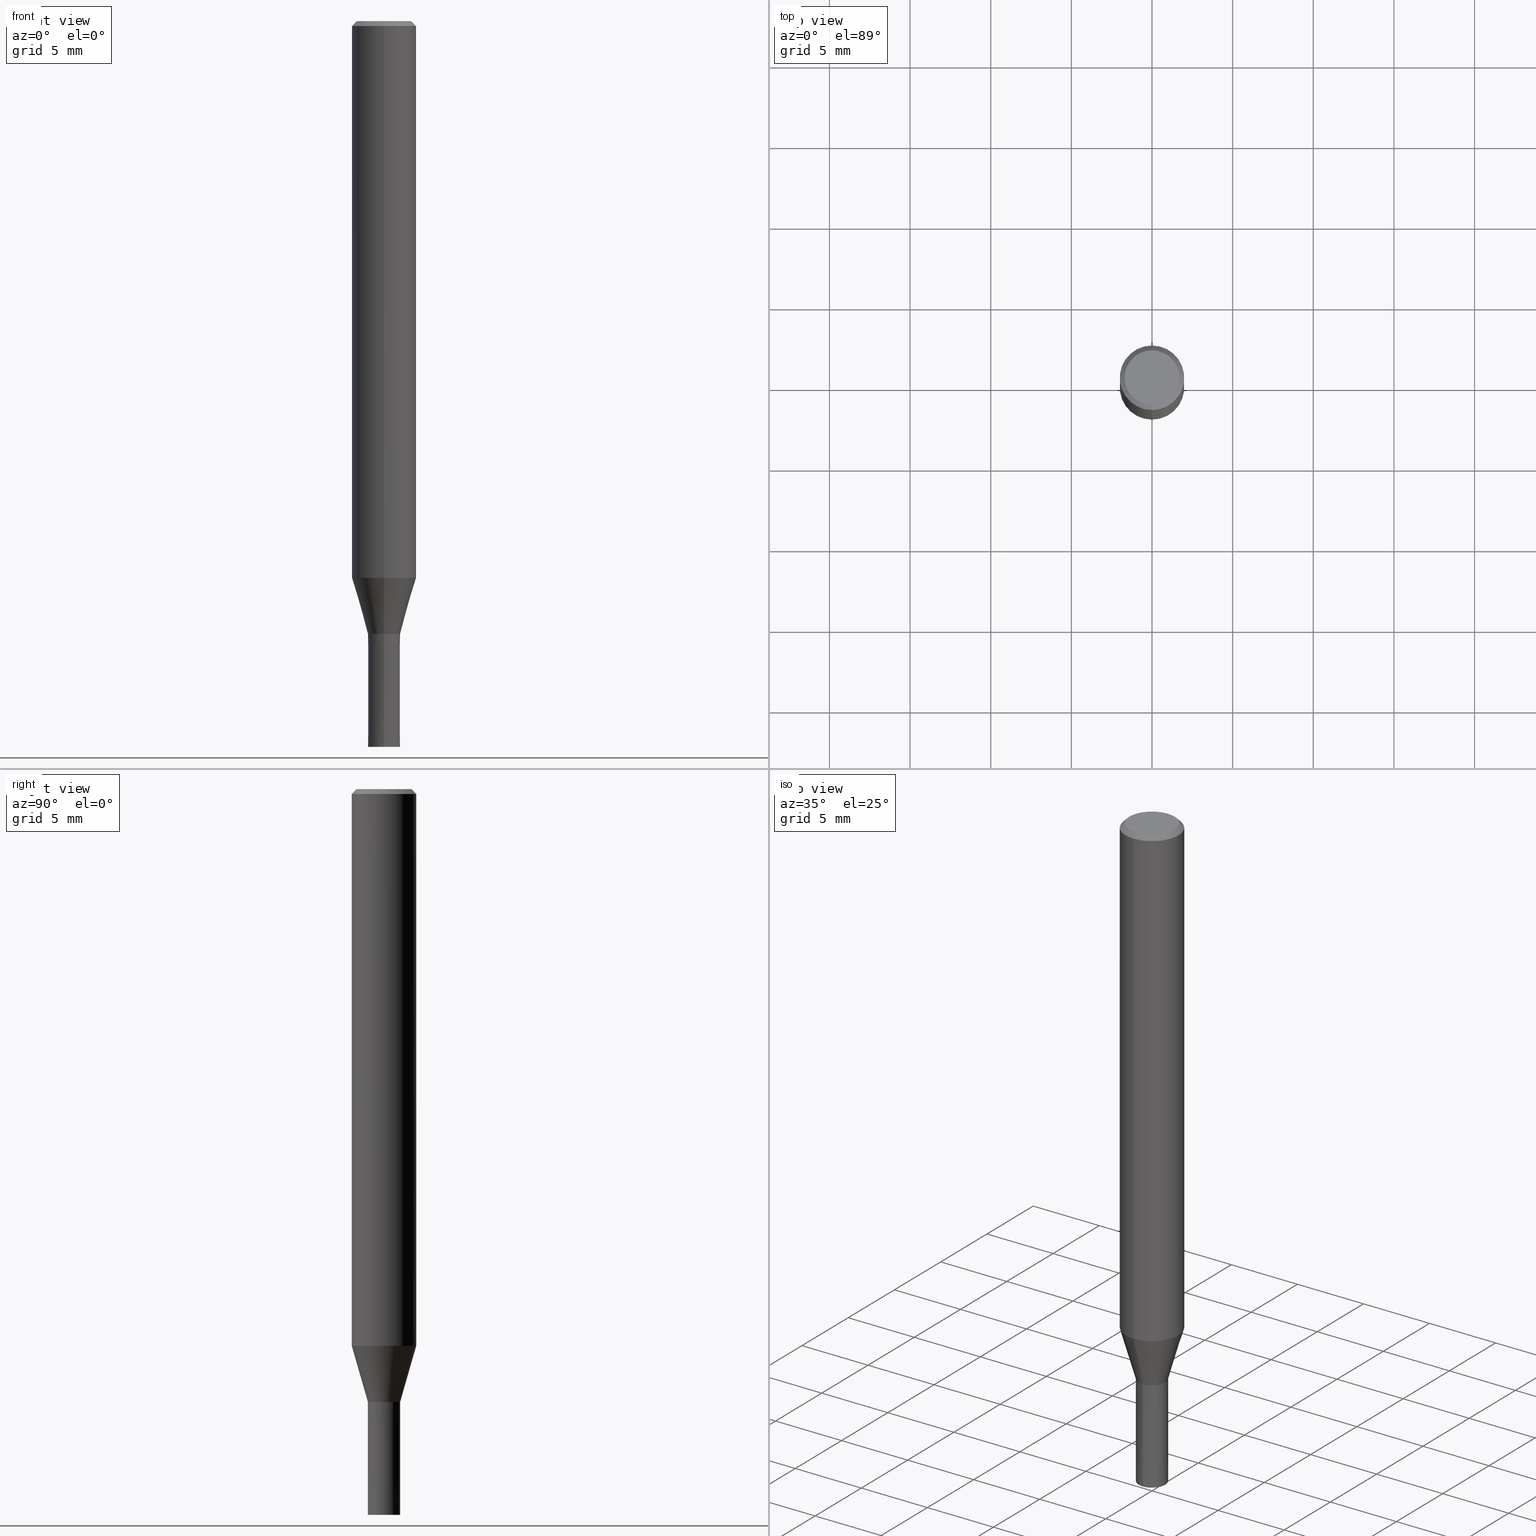
[diagram: canonical four-view strip — front | top / right | iso, engineering-drawing reading convention]
A machine part, canonical four-view strip (front | top / right | iso — engineering-drawing reading convention). The complete STEP part file that produces these views, byte-faithful:
ISO-10303-21;
HEADER;
FILE_DESCRIPTION(('no description'),'unknown implementation level');
FILE_NAME('HMS3020-0700-Huellk.stp','  ',('CIMSOURCE GmbH'),('CADClick - KiM GmbH - www.kimweb.de'),'unknown preprocess','ACIS','unknown authorization');
FILE_SCHEMA(('automotive_design'));
ENDSEC;
DATA;
#1=MECHANICAL_DESIGN_GEOMETRIC_PRESENTATION_REPRESENTATION(' ',(#14,#15,#16,#17,#18,#19,#20,#21,#22,#23,#24,#25,#26,#27,#28,#29,#30,#31,#32,#33,#34,#35,#36,#37,#38,#39,#40,#41,#42,#43,#44,#45,#46,#47,#48,#49,#50,#51,#52,#53,#54,#55,#56,#57,#58,#59,#60,#61,#62,#63,#64,#65,#66,#67,#68,#69,#70,#71,#72,#73,#74,#75,#76,#77,#78,#79,#80,#81,#82,#83,#84,#85,#86,#87,#88,#89),#10);
#2=PRODUCT_DEFINITION_CONTEXT('',#90,'design');
#3=APPLICATION_PROTOCOL_DEFINITION('INTERNATIONAL STANDARD','automotive_design',1994,#90);
#4=PRODUCT_CATEGORY_RELATIONSHIP('NONE','NONE',#91,#92);
#5=SHAPE_DEFINITION_REPRESENTATION(#93,#94);
#6=PRODUCT_DEFINITION_CONTEXT('',#95,'design');
#7=APPLICATION_PROTOCOL_DEFINITION('INTERNATIONAL STANDARD','automotive_design',1994,#95);
#8=PRODUCT_CATEGORY_RELATIONSHIP('NONE','NONE',#96,#97);
#9=SHAPE_DEFINITION_REPRESENTATION(#98,#99);
#10= (GEOMETRIC_REPRESENTATION_CONTEXT(3)GLOBAL_UNCERTAINTY_ASSIGNED_CONTEXT((#102))GLOBAL_UNIT_ASSIGNED_CONTEXT((#104,#105,#106))REPRESENTATION_CONTEXT('NONE','WORKSPACE'));
#14=STYLED_ITEM('',(#108),#109);
#15=STYLED_ITEM('',(#110),#111);
#16=STYLED_ITEM('',(#112),#113);
#17=STYLED_ITEM('',(#114),#115);
#18=STYLED_ITEM('',(#116),#117);
#19=STYLED_ITEM('',(#118),#119);
#20=STYLED_ITEM('',(#120),#121);
#21=STYLED_ITEM('',(#122),#123);
#22=STYLED_ITEM('',(#124),#125);
#23=STYLED_ITEM('',(#126),#127);
#24=STYLED_ITEM('',(#128),#129);
#25=STYLED_ITEM('',(#130),#131);
#26=STYLED_ITEM('',(#132),#133);
#27=STYLED_ITEM('',(#134),#135);
#28=STYLED_ITEM('',(#136),#137);
#29=STYLED_ITEM('',(#138),#139);
#30=STYLED_ITEM('',(#140),#141);
#31=STYLED_ITEM('',(#142),#143);
#32=STYLED_ITEM('',(#144),#145);
#33=STYLED_ITEM('',(#146),#147);
#34=STYLED_ITEM('',(#148),#149);
#35=STYLED_ITEM('',(#150),#151);
#36=STYLED_ITEM('',(#152),#153);
#37=STYLED_ITEM('',(#154),#155);
#38=STYLED_ITEM('',(#156),#157);
#39=STYLED_ITEM('',(#158),#159);
#40=STYLED_ITEM('',(#160),#161);
#41=STYLED_ITEM('',(#162),#163);
#42=STYLED_ITEM('',(#164),#165);
#43=STYLED_ITEM('',(#166),#167);
#44=STYLED_ITEM('',(#168),#169);
#45=STYLED_ITEM('',(#170),#171);
#46=STYLED_ITEM('',(#172),#173);
#47=STYLED_ITEM('',(#174),#175);
#48=STYLED_ITEM('',(#176),#177);
#49=STYLED_ITEM('',(#178),#179);
#50=STYLED_ITEM('',(#180),#181);
#51=STYLED_ITEM('',(#182),#183);
#52=STYLED_ITEM('',(#184),#185);
#53=STYLED_ITEM('',(#186),#187);
#54=STYLED_ITEM('',(#188),#189);
#55=STYLED_ITEM('',(#190),#191);
#56=STYLED_ITEM('',(#192),#193);
#57=STYLED_ITEM('',(#194),#195);
#58=STYLED_ITEM('',(#196),#197);
#59=STYLED_ITEM('',(#198),#199);
#60=STYLED_ITEM('',(#200),#201);
#61=STYLED_ITEM('',(#202),#203);
#62=STYLED_ITEM('',(#204),#205);
#63=STYLED_ITEM('',(#206),#207);
#64=STYLED_ITEM('',(#208),#209);
#65=STYLED_ITEM('',(#210),#211);
#66=STYLED_ITEM('',(#212),#213);
#67=STYLED_ITEM('',(#214),#215);
#68=STYLED_ITEM('',(#216),#217);
#69=STYLED_ITEM('',(#218),#219);
#70=STYLED_ITEM('',(#220),#221);
#71=STYLED_ITEM('',(#222),#223);
#72=STYLED_ITEM('',(#224),#225);
#73=STYLED_ITEM('',(#226),#227);
#74=STYLED_ITEM('',(#228),#229);
#75=STYLED_ITEM('',(#230),#231);
#76=STYLED_ITEM('',(#232),#233);
#77=STYLED_ITEM('',(#234),#235);
#78=STYLED_ITEM('',(#236),#237);
#79=STYLED_ITEM('',(#238),#239);
#80=STYLED_ITEM('',(#240),#241);
#81=STYLED_ITEM('',(#242),#243);
#82=STYLED_ITEM('',(#244),#245);
#83=STYLED_ITEM('',(#246),#247);
#84=STYLED_ITEM('',(#248),#249);
#85=STYLED_ITEM('',(#250),#251);
#86=STYLED_ITEM('',(#252),#253);
#87=STYLED_ITEM('',(#254),#255);
#88=STYLED_ITEM('',(#256),#257);
#89=STYLED_ITEM('',(#258),#259);
#90=APPLICATION_CONTEXT(' ');
#91=PRODUCT_CATEGORY('part','NONE');
#92=PRODUCT_RELATED_PRODUCT_CATEGORY('detail',' ',(#260));
#93=PRODUCT_DEFINITION_SHAPE('NONE','NONE',#261);
#94=ADVANCED_BREP_SHAPE_REPRESENTATION('1',(#223,#262),#10);
#95=APPLICATION_CONTEXT(' ');
#96=PRODUCT_CATEGORY('part','NONE');
#97=PRODUCT_RELATED_PRODUCT_CATEGORY('detail',' ',(#263));
#98=PRODUCT_DEFINITION_SHAPE('NONE','NONE',#264);
#99=ADVANCED_BREP_SHAPE_REPRESENTATION('2',(#187,#265),#10);
#102=UNCERTAINTY_MEASURE_WITH_UNIT(LENGTH_MEASURE(1.0E-006),#104,'','');
#104= (CONVERSION_BASED_UNIT('MILLIMETRE',#268)LENGTH_UNIT()NAMED_UNIT(#271));
#105= (NAMED_UNIT(#273)PLANE_ANGLE_UNIT()SI_UNIT($,.RADIAN.));
#106= (NAMED_UNIT(#273)SOLID_ANGLE_UNIT()SI_UNIT($,.STERADIAN.));
#108=PRESENTATION_STYLE_ASSIGNMENT((#279));
#109=VERTEX_POINT('',#280);
#110=PRESENTATION_STYLE_ASSIGNMENT((#281));
#111=EDGE_CURVE('',#183,#143,#282,.T.);
#112=PRESENTATION_STYLE_ASSIGNMENT((#283));
#113=ADVANCED_FACE('',(#284),#285,.T.);
#114=PRESENTATION_STYLE_ASSIGNMENT((#286));
#115=ADVANCED_FACE('',(#287),#288,.T.);
#116=PRESENTATION_STYLE_ASSIGNMENT((#289));
#117=VERTEX_POINT('',#290);
#118=PRESENTATION_STYLE_ASSIGNMENT((#291));
#119=EDGE_CURVE('',#109,#181,#292,.T.);
#120=PRESENTATION_STYLE_ASSIGNMENT((#293));
#121=VERTEX_POINT('',#294);
#122=PRESENTATION_STYLE_ASSIGNMENT((#295));
#123=ADVANCED_FACE('',(#296),#297,.T.);
#124=PRESENTATION_STYLE_ASSIGNMENT((#298));
#125=ADVANCED_FACE('',(#299,#300),#301,.T.);
#126=PRESENTATION_STYLE_ASSIGNMENT((#302));
#127=EDGE_CURVE('',#237,#249,#303,.T.);
#128=PRESENTATION_STYLE_ASSIGNMENT((#304));
#129=EDGE_CURVE('',#185,#157,#305,.T.);
#130=PRESENTATION_STYLE_ASSIGNMENT((#306));
#131=EDGE_CURVE('',#247,#121,#307,.T.);
#132=PRESENTATION_STYLE_ASSIGNMENT((#308));
#133=VERTEX_POINT('',#309);
#134=PRESENTATION_STYLE_ASSIGNMENT((#310));
#135=ADVANCED_FACE('',(#311),#312,.T.);
#136=PRESENTATION_STYLE_ASSIGNMENT((#313));
#137=EDGE_CURVE('',#143,#183,#314,.T.);
#138=PRESENTATION_STYLE_ASSIGNMENT((#315));
#139=ADVANCED_FACE('',(#316),#317,.T.);
#140=PRESENTATION_STYLE_ASSIGNMENT((#318));
#141=VERTEX_POINT('',#319);
#142=PRESENTATION_STYLE_ASSIGNMENT((#320));
#143=VERTEX_POINT('',#321);
#144=PRESENTATION_STYLE_ASSIGNMENT((#322));
#145=ADVANCED_FACE('',(#323),#324,.T.);
#146=PRESENTATION_STYLE_ASSIGNMENT((#325));
#147=EDGE_CURVE('',#117,#171,#326,.T.);
#148=PRESENTATION_STYLE_ASSIGNMENT((#327));
#149=ADVANCED_FACE('',(#328),#329,.F.);
#150=PRESENTATION_STYLE_ASSIGNMENT((#330));
#151=EDGE_CURVE('',#181,#171,#331,.T.);
#152=PRESENTATION_STYLE_ASSIGNMENT((#332));
#153=EDGE_CURVE('',#191,#161,#333,.T.);
#154=PRESENTATION_STYLE_ASSIGNMENT((#334));
#155=EDGE_CURVE('',#233,#143,#335,.T.);
#156=PRESENTATION_STYLE_ASSIGNMENT((#336));
#157=VERTEX_POINT('',#337);
#158=PRESENTATION_STYLE_ASSIGNMENT((#338));
#159=ADVANCED_FACE('',(#339,#340),#341,.T.);
#160=PRESENTATION_STYLE_ASSIGNMENT((#342));
#161=VERTEX_POINT('',#343);
#162=PRESENTATION_STYLE_ASSIGNMENT((#344));
#163=EDGE_CURVE('',#249,#237,#345,.T.);
#164=PRESENTATION_STYLE_ASSIGNMENT((#346));
#165=ADVANCED_FACE('',(#347),#348,.T.);
#166=PRESENTATION_STYLE_ASSIGNMENT((#349));
#167=EDGE_CURVE('',#249,#191,#350,.T.);
#168=PRESENTATION_STYLE_ASSIGNMENT((#351));
#169=ADVANCED_FACE('',(#352,#353),#354,.T.);
#170=PRESENTATION_STYLE_ASSIGNMENT((#355));
#171=VERTEX_POINT('',#356);
#172=PRESENTATION_STYLE_ASSIGNMENT((#357));
#173=EDGE_CURVE('',#233,#243,#358,.T.);
#174=PRESENTATION_STYLE_ASSIGNMENT((#359));
#175=VERTEX_POINT('',#360);
#176=PRESENTATION_STYLE_ASSIGNMENT((#361));
#177=EDGE_CURVE('',#229,#117,#362,.T.);
#178=PRESENTATION_STYLE_ASSIGNMENT((#363));
#179=ADVANCED_FACE('',(#364),#365,.T.);
#180=PRESENTATION_STYLE_ASSIGNMENT((#366));
#181=VERTEX_POINT('',#367);
#182=PRESENTATION_STYLE_ASSIGNMENT((#368));
#183=VERTEX_POINT('',#369);
#184=PRESENTATION_STYLE_ASSIGNMENT((#370));
#185=VERTEX_POINT('',#371);
#186=PRESENTATION_STYLE_ASSIGNMENT((#372));
#187=MANIFOLD_SOLID_BREP('2',#373);
#188=PRESENTATION_STYLE_ASSIGNMENT((#374));
#189=EDGE_CURVE('',#211,#157,#375,.T.);
#190=PRESENTATION_STYLE_ASSIGNMENT((#376));
#191=VERTEX_POINT('',#377);
#192=PRESENTATION_STYLE_ASSIGNMENT((#378));
#193=EDGE_CURVE('',#175,#121,#379,.T.);
#194=PRESENTATION_STYLE_ASSIGNMENT((#380));
#195=EDGE_CURVE('',#175,#255,#381,.T.);
#196=PRESENTATION_STYLE_ASSIGNMENT((#382));
#197=EDGE_CURVE('',#255,#175,#383,.T.);
#198=PRESENTATION_STYLE_ASSIGNMENT((#384));
#199=EDGE_CURVE('',#157,#185,#385,.T.);
#200=PRESENTATION_STYLE_ASSIGNMENT((#386));
#201=ADVANCED_FACE('',(#387),#388,.T.);
#202=PRESENTATION_STYLE_ASSIGNMENT((#389));
#203=EDGE_CURVE('',#171,#133,#390,.T.);
#204=PRESENTATION_STYLE_ASSIGNMENT((#391));
#205=EDGE_CURVE('',#109,#133,#392,.T.);
#206=PRESENTATION_STYLE_ASSIGNMENT((#393));
#207=EDGE_CURVE('',#161,#191,#394,.T.);
#208=PRESENTATION_STYLE_ASSIGNMENT((#395));
#209=ADVANCED_FACE('',(#396),#397,.F.);
#210=PRESENTATION_STYLE_ASSIGNMENT((#398));
#211=VERTEX_POINT('',#399);
#212=PRESENTATION_STYLE_ASSIGNMENT((#400));
#213=EDGE_CURVE('',#183,#243,#401,.T.);
#214=PRESENTATION_STYLE_ASSIGNMENT((#402));
#215=EDGE_CURVE('',#247,#255,#403,.T.);
#216=PRESENTATION_STYLE_ASSIGNMENT((#404));
#217=EDGE_CURVE('',#121,#247,#405,.T.);
#218=PRESENTATION_STYLE_ASSIGNMENT((#406));
#219=ADVANCED_FACE('',(#407),#408,.T.);
#220=PRESENTATION_STYLE_ASSIGNMENT((#409));
#221=EDGE_CURVE('',#171,#181,#410,.T.);
#222=PRESENTATION_STYLE_ASSIGNMENT((#411));
#223=MANIFOLD_SOLID_BREP('1',#412);
#224=PRESENTATION_STYLE_ASSIGNMENT((#413));
#225=ADVANCED_FACE('',(#414,#415),#416,.T.);
#226=PRESENTATION_STYLE_ASSIGNMENT((#417));
#227=EDGE_CURVE('',#133,#109,#418,.T.);
#228=PRESENTATION_STYLE_ASSIGNMENT((#419));
#229=VERTEX_POINT('',#420);
#230=PRESENTATION_STYLE_ASSIGNMENT((#421));
#231=EDGE_CURVE('',#161,#237,#422,.T.);
#232=PRESENTATION_STYLE_ASSIGNMENT((#423));
#233=VERTEX_POINT('',#424);
#234=PRESENTATION_STYLE_ASSIGNMENT((#425));
#235=EDGE_CURVE('',#211,#141,#426,.T.);
#236=PRESENTATION_STYLE_ASSIGNMENT((#427));
#237=VERTEX_POINT('',#428);
#238=PRESENTATION_STYLE_ASSIGNMENT((#429));
#239=EDGE_CURVE('',#181,#229,#430,.T.);
#240=PRESENTATION_STYLE_ASSIGNMENT((#431));
#241=ADVANCED_FACE('',(#432),#433,.T.);
#242=PRESENTATION_STYLE_ASSIGNMENT((#434));
#243=VERTEX_POINT('',#435);
#244=PRESENTATION_STYLE_ASSIGNMENT((#436));
#245=EDGE_CURVE('',#141,#211,#437,.T.);
#246=PRESENTATION_STYLE_ASSIGNMENT((#438));
#247=VERTEX_POINT('',#439);
#248=PRESENTATION_STYLE_ASSIGNMENT((#440));
#249=VERTEX_POINT('',#441);
#250=PRESENTATION_STYLE_ASSIGNMENT((#442));
#251=EDGE_CURVE('',#185,#141,#443,.T.);
#252=PRESENTATION_STYLE_ASSIGNMENT((#444));
#253=ADVANCED_FACE('',(#445),#446,.T.);
#254=PRESENTATION_STYLE_ASSIGNMENT((#447));
#255=VERTEX_POINT('',#448);
#256=PRESENTATION_STYLE_ASSIGNMENT((#449));
#257=EDGE_CURVE('',#117,#229,#450,.T.);
#258=PRESENTATION_STYLE_ASSIGNMENT((#451));
#259=EDGE_CURVE('',#243,#233,#452,.T.);
#260=PRODUCT('1','1','PART-1-DESC',(#453));
#261=PRODUCT_DEFINITION('NONE','NONE',#454,#2);
#262=AXIS2_PLACEMENT_3D('',#455,#456,#457);
#263=PRODUCT('2','2','PART-2-DESC',(#458));
#264=PRODUCT_DEFINITION('NONE','NONE',#459,#6);
#265=AXIS2_PLACEMENT_3D('',#460,#461,#462);
#268=LENGTH_MEASURE_WITH_UNIT(LENGTH_MEASURE(1.0),#463);
#271=DIMENSIONAL_EXPONENTS(1.0,0.0,0.0,0.0,0.0,0.0,0.0);
#273=DIMENSIONAL_EXPONENTS(0.0,0.0,0.0,0.0,0.0,0.0,0.0);
#279=POINT_STYLE(' ',#464,POSITIVE_LENGTH_MEASURE(1.0E-006),#465);
#280=CARTESIAN_POINT('',(2.44921270764475E-016,-2.0,-34.513));
#281=CURVE_STYLE('',#466,POSITIVE_LENGTH_MEASURE(1.0E-006),#467);
#282=CIRCLE('',#468,0.45);
#283=SURFACE_STYLE_USAGE(.BOTH.,#469);
#284=FACE_OUTER_BOUND('',#470,.T.);
#285=CONICAL_SURFACE('',#471,0.99995,1.42857142847409E-005);
#286=SURFACE_STYLE_USAGE(.BOTH.,#472);
#287=FACE_OUTER_BOUND('',#473,.T.);
#288=CONICAL_SURFACE('',#474,1.49995,0.279284171542493);
#289=POINT_STYLE(' ',#475,POSITIVE_LENGTH_MEASURE(1.0E-006),#476);
#290=CARTESIAN_POINT('',(0.0,1.7,0.0));
#291=CURVE_STYLE('',#477,POSITIVE_LENGTH_MEASURE(1.0E-006),#478);
#292=LINE('',#479,#480);
#293=POINT_STYLE(' ',#481,POSITIVE_LENGTH_MEASURE(1.0E-006),#482);
#294=CARTESIAN_POINT('',(0.0,1.0,-45.0));
#295=SURFACE_STYLE_USAGE(.BOTH.,#483);
#296=FACE_OUTER_BOUND('',#484,.T.);
#297=CYLINDRICAL_SURFACE('',#485,2.0);
#298=SURFACE_STYLE_USAGE(.BOTH.,#486);
#299=FACE_OUTER_BOUND('',#487,.T.);
#300=FACE_BOUND('',#488,.T.);
#301=PLANE('',#489);
#302=CURVE_STYLE('',#490,POSITIVE_LENGTH_MEASURE(1.0E-006),#491);
#303=CIRCLE('',#492,0.45);
#304=CURVE_STYLE('',#493,POSITIVE_LENGTH_MEASURE(1.0E-006),#494);
#305=CIRCLE('',#495,0.99995);
#306=CURVE_STYLE('',#496,POSITIVE_LENGTH_MEASURE(1.0E-006),#497);
#307=CIRCLE('',#498,1.0);
#308=POINT_STYLE(' ',#499,POSITIVE_LENGTH_MEASURE(1.0E-006),#500);
#309=CARTESIAN_POINT('',(0.0,2.0,-34.513));
#310=SURFACE_STYLE_USAGE(.BOTH.,#501);
#311=FACE_OUTER_BOUND('',#502,.T.);
#312=CONICAL_SURFACE('',#503,0.99995,1.42857142847409E-005);
#313=CURVE_STYLE('',#504,POSITIVE_LENGTH_MEASURE(1.0E-006),#505);
#314=CIRCLE('',#506,0.45);
#315=SURFACE_STYLE_USAGE(.BOTH.,#507);
#316=FACE_OUTER_BOUND('',#508,.T.);
#317=CONICAL_SURFACE('',#509,1.49995,0.279284171542493);
#318=POINT_STYLE(' ',#510,POSITIVE_LENGTH_MEASURE(1.0E-006),#511);
#319=CARTESIAN_POINT('',(2.44915147732706E-016,-1.99995,-34.513));
#320=POINT_STYLE(' ',#512,POSITIVE_LENGTH_MEASURE(1.0E-006),#513);
#321=CARTESIAN_POINT('',(5.5107285922007E-017,-0.45,-38.0));
#322=SURFACE_STYLE_USAGE(.BOTH.,#514);
#323=FACE_OUTER_BOUND('',#515,.T.);
#324=CONICAL_SURFACE('',#516,1.85,0.785398163397453);
#325=CURVE_STYLE('',#517,POSITIVE_LENGTH_MEASURE(1.0E-006),#518);
#326=LINE('',#519,#520);
#327=SURFACE_STYLE_USAGE(.BOTH.,#521);
#328=FACE_OUTER_BOUND('',#522,.T.);
#329=CYLINDRICAL_SURFACE('',#523,0.45);
#330=CURVE_STYLE('',#524,POSITIVE_LENGTH_MEASURE(1.0E-006),#525);
#331=CIRCLE('',#526,2.0);
#332=CURVE_STYLE('',#527,POSITIVE_LENGTH_MEASURE(1.0E-006),#528);
#333=CIRCLE('',#529,0.45);
#334=CURVE_STYLE('',#530,POSITIVE_LENGTH_MEASURE(1.0E-006),#531);
#335=LINE('',#532,#533);
#336=POINT_STYLE(' ',#534,POSITIVE_LENGTH_MEASURE(1.0E-006),#535);
#337=CARTESIAN_POINT('',(0.0,0.99995,-38.0));
#338=SURFACE_STYLE_USAGE(.BOTH.,#536);
#339=FACE_OUTER_BOUND('',#537,.T.);
#340=FACE_BOUND('',#538,.T.);
#341=PLANE('',#539);
#342=POINT_STYLE(' ',#540,POSITIVE_LENGTH_MEASURE(1.0E-006),#541);
#343=CARTESIAN_POINT('',(0.0,0.45,-38.0));
#344=CURVE_STYLE('',#542,POSITIVE_LENGTH_MEASURE(1.0E-006),#543);
#345=CIRCLE('',#544,0.45);
#346=SURFACE_STYLE_USAGE(.BOTH.,#545);
#347=FACE_OUTER_BOUND('',#546,.T.);
#348=PLANE('',#547);
#349=CURVE_STYLE('',#548,POSITIVE_LENGTH_MEASURE(1.0E-006),#549);
#350=LINE('',#550,#551);
#351=SURFACE_STYLE_USAGE(.BOTH.,#552);
#352=FACE_BOUND('',#553,.T.);
#353=FACE_OUTER_BOUND('',#554,.T.);
#354=PLANE('',#555);
#355=POINT_STYLE(' ',#556,POSITIVE_LENGTH_MEASURE(1.0E-006),#557);
#356=CARTESIAN_POINT('',(0.0,2.0,-0.299999999999997));
#357=CURVE_STYLE('',#558,POSITIVE_LENGTH_MEASURE(1.0E-006),#559);
#358=CIRCLE('',#560,0.45);
#359=POINT_STYLE(' ',#561,POSITIVE_LENGTH_MEASURE(1.0E-006),#562);
#360=CARTESIAN_POINT('',(0.0,0.9999,-38.0));
#361=CURVE_STYLE('',#563,POSITIVE_LENGTH_MEASURE(1.0E-006),#564);
#362=CIRCLE('',#565,1.7);
#363=SURFACE_STYLE_USAGE(.BOTH.,#566);
#364=FACE_OUTER_BOUND('',#567,.T.);
#365=CONICAL_SURFACE('',#568,1.85,0.785398163397453);
#366=POINT_STYLE(' ',#569,POSITIVE_LENGTH_MEASURE(1.0E-006),#570);
#367=CARTESIAN_POINT('',(2.44921270764475E-016,-2.0,-0.299999999999997));
#368=POINT_STYLE(' ',#571,POSITIVE_LENGTH_MEASURE(1.0E-006),#572);
#369=CARTESIAN_POINT('',(0.0,0.45,-38.0));
#370=POINT_STYLE(' ',#573,POSITIVE_LENGTH_MEASURE(1.0E-006),#574);
#371=CARTESIAN_POINT('',(1.22454512350469E-016,-0.99995,-38.0));
#372=SURFACE_STYLE_USAGE(.BOTH.,#575);
#373=CLOSED_SHELL('',(#209,#113,#159,#135,#125,#149));
#374=CURVE_STYLE('',#576,POSITIVE_LENGTH_MEASURE(1.0E-006),#577);
#375=LINE('',#578,#579);
#376=POINT_STYLE(' ',#580,POSITIVE_LENGTH_MEASURE(1.0E-006),#581);
#377=CARTESIAN_POINT('',(5.5107285922007E-017,-0.45,-38.0));
#378=CURVE_STYLE('',#582,POSITIVE_LENGTH_MEASURE(1.0E-006),#583);
#379=LINE('',#584,#585);
#380=CURVE_STYLE('',#586,POSITIVE_LENGTH_MEASURE(1.0E-006),#587);
#381=CIRCLE('',#588,0.9999);
#382=CURVE_STYLE('',#589,POSITIVE_LENGTH_MEASURE(1.0E-006),#590);
#383=CIRCLE('',#591,0.9999);
#384=CURVE_STYLE('',#592,POSITIVE_LENGTH_MEASURE(1.0E-006),#593);
#385=CIRCLE('',#594,0.99995);
#386=SURFACE_STYLE_USAGE(.BOTH.,#595);
#387=FACE_OUTER_BOUND('',#596,.T.);
#388=CYLINDRICAL_SURFACE('',#597,0.45);
#389=CURVE_STYLE('',#598,POSITIVE_LENGTH_MEASURE(1.0E-006),#599);
#390=LINE('',#600,#601);
#391=CURVE_STYLE('',#602,POSITIVE_LENGTH_MEASURE(1.0E-006),#603);
#392=CIRCLE('',#604,2.0);
#393=CURVE_STYLE('',#605,POSITIVE_LENGTH_MEASURE(1.0E-006),#606);
#394=CIRCLE('',#607,0.45);
#395=SURFACE_STYLE_USAGE(.BOTH.,#608);
#396=FACE_OUTER_BOUND('',#609,.T.);
#397=CYLINDRICAL_SURFACE('',#610,0.45);
#398=POINT_STYLE(' ',#611,POSITIVE_LENGTH_MEASURE(1.0E-006),#612);
#399=CARTESIAN_POINT('',(0.0,1.99995,-34.513));
#400=CURVE_STYLE('',#613,POSITIVE_LENGTH_MEASURE(1.0E-006),#614);
#401=LINE('',#615,#616);
#402=CURVE_STYLE('',#617,POSITIVE_LENGTH_MEASURE(1.0E-006),#618);
#403=LINE('',#619,#620);
#404=CURVE_STYLE('',#621,POSITIVE_LENGTH_MEASURE(1.0E-006),#622);
#405=CIRCLE('',#623,1.0);
#406=SURFACE_STYLE_USAGE(.BOTH.,#624);
#407=FACE_OUTER_BOUND('',#625,.T.);
#408=CYLINDRICAL_SURFACE('',#626,2.0);
#409=CURVE_STYLE('',#627,POSITIVE_LENGTH_MEASURE(1.0E-006),#628);
#410=CIRCLE('',#629,2.0);
#411=SURFACE_STYLE_USAGE(.BOTH.,#630);
#412=CLOSED_SHELL('',(#201,#115,#219,#145,#225,#241,#179,#123,#139,#169,#253,#165));
#413=SURFACE_STYLE_USAGE(.BOTH.,#631);
#414=FACE_OUTER_BOUND('',#632,.T.);
#415=FACE_BOUND('',#633,.T.);
#416=PLANE('',#634);
#417=CURVE_STYLE('',#635,POSITIVE_LENGTH_MEASURE(1.0E-006),#636);
#418=CIRCLE('',#637,2.0);
#419=POINT_STYLE(' ',#638,POSITIVE_LENGTH_MEASURE(1.0E-006),#639);
#420=CARTESIAN_POINT('',(2.08183080149804E-016,-1.7,0.0));
#421=CURVE_STYLE('',#640,POSITIVE_LENGTH_MEASURE(1.0E-006),#641);
#422=LINE('',#642,#643);
#423=POINT_STYLE(' ',#644,POSITIVE_LENGTH_MEASURE(1.0E-006),#645);
#424=CARTESIAN_POINT('',(5.5107285922007E-017,-0.45,-44.9));
#425=CURVE_STYLE('',#646,POSITIVE_LENGTH_MEASURE(1.0E-006),#647);
#426=CIRCLE('',#648,1.99995);
#427=POINT_STYLE(' ',#649,POSITIVE_LENGTH_MEASURE(1.0E-006),#650);
#428=CARTESIAN_POINT('',(0.0,0.45,-45.0));
#429=CURVE_STYLE('',#651,POSITIVE_LENGTH_MEASURE(1.0E-006),#652);
#430=LINE('',#653,#654);
#431=SURFACE_STYLE_USAGE(.BOTH.,#655);
#432=FACE_OUTER_BOUND('',#656,.T.);
#433=PLANE('',#657);
#434=POINT_STYLE(' ',#658,POSITIVE_LENGTH_MEASURE(1.0E-006),#659);
#435=CARTESIAN_POINT('',(0.0,0.45,-44.9));
#436=CURVE_STYLE('',#660,POSITIVE_LENGTH_MEASURE(1.0E-006),#661);
#437=CIRCLE('',#662,1.99995);
#438=POINT_STYLE(' ',#663,POSITIVE_LENGTH_MEASURE(1.0E-006),#664);
#439=CARTESIAN_POINT('',(1.22460635382238E-016,-1.0,-45.0));
#440=POINT_STYLE(' ',#665,POSITIVE_LENGTH_MEASURE(1.0E-006),#666);
#441=CARTESIAN_POINT('',(5.5107285922007E-017,-0.45,-45.0));
#442=CURVE_STYLE('',#667,POSITIVE_LENGTH_MEASURE(1.0E-006),#668);
#443=LINE('',#669,#670);
#444=SURFACE_STYLE_USAGE(.BOTH.,#671);
#445=FACE_OUTER_BOUND('',#672,.T.);
#446=CYLINDRICAL_SURFACE('',#673,0.45);
#447=POINT_STYLE(' ',#674,POSITIVE_LENGTH_MEASURE(1.0E-006),#675);
#448=CARTESIAN_POINT('',(1.224483893187E-016,-0.9999,-38.0));
#449=CURVE_STYLE('',#676,POSITIVE_LENGTH_MEASURE(1.0E-006),#677);
#450=CIRCLE('',#678,1.7);
#451=CURVE_STYLE('',#679,POSITIVE_LENGTH_MEASURE(1.0E-006),#680);
#452=CIRCLE('',#681,0.45);
#453=PRODUCT_CONTEXT('',#90,'mechanical');
#454=PRODUCT_DEFINITION_FORMATION_WITH_SPECIFIED_SOURCE(' ','NONE',#260,.NOT_KNOWN.);
#455=CARTESIAN_POINT('',(0.0,0.0,0.0));
#456=DIRECTION('',(0.0,0.0,1.0));
#457=DIRECTION('',(1.0,0.0,0.0));
#458=PRODUCT_CONTEXT('',#95,'mechanical');
#459=PRODUCT_DEFINITION_FORMATION_WITH_SPECIFIED_SOURCE(' ','NONE',#263,.NOT_KNOWN.);
#460=CARTESIAN_POINT('',(0.0,0.0,0.0));
#461=DIRECTION('',(0.0,0.0,1.0));
#462=DIRECTION('',(1.0,0.0,0.0));
#463= (NAMED_UNIT(#271)LENGTH_UNIT()SI_UNIT(.MILLI.,.METRE.));
#464=PRE_DEFINED_MARKER('');
#465=COLOUR_RGB('',0.498039215803146,0.498039215803146,0.498039215803146);
#466=DRAUGHTING_PRE_DEFINED_CURVE_FONT('continuous');
#467=COLOUR_RGB('',0.498039215803146,0.498039215803146,0.498039215803146);
#468=AXIS2_PLACEMENT_3D('',#683,#684,#685);
#469=SURFACE_SIDE_STYLE('',(#686));
#470=EDGE_LOOP('',(#687,#688,#689,#690));
#471=AXIS2_PLACEMENT_3D('',#691,#692,#693);
#472=SURFACE_SIDE_STYLE('',(#694));
#473=EDGE_LOOP('',(#695,#696,#697,#698));
#474=AXIS2_PLACEMENT_3D('',#699,#700,#701);
#475=PRE_DEFINED_MARKER('');
#476=COLOUR_RGB('',0.498039215803146,0.498039215803146,0.498039215803146);
#477=DRAUGHTING_PRE_DEFINED_CURVE_FONT('continuous');
#478=COLOUR_RGB('',0.498039215803146,0.498039215803146,0.498039215803146);
#479=CARTESIAN_POINT('',(2.44921270764475E-016,-2.0,-17.4065));
#480=VECTOR('',#702,1.0);
#481=PRE_DEFINED_MARKER('');
#482=COLOUR_RGB('',0.800000011920929,0.800000011920929,0.800000011920929);
#483=SURFACE_SIDE_STYLE('',(#703));
#484=EDGE_LOOP('',(#704,#705,#706,#707));
#485=AXIS2_PLACEMENT_3D('',#708,#709,#710);
#486=SURFACE_SIDE_STYLE('',(#711));
#487=EDGE_LOOP('',(#712,#713));
#488=EDGE_LOOP('',(#714,#715));
#489=AXIS2_PLACEMENT_3D('',#716,#717,#718);
#490=DRAUGHTING_PRE_DEFINED_CURVE_FONT('continuous');
#491=COLOUR_RGB('',0.800000011920929,0.800000011920929,0.800000011920929);
#492=AXIS2_PLACEMENT_3D('',#719,#720,#721);
#493=DRAUGHTING_PRE_DEFINED_CURVE_FONT('continuous');
#494=COLOUR_RGB('',0.498039215803146,0.498039215803146,0.498039215803146);
#495=AXIS2_PLACEMENT_3D('',#722,#723,#724);
#496=DRAUGHTING_PRE_DEFINED_CURVE_FONT('continuous');
#497=COLOUR_RGB('',0.800000011920929,0.800000011920929,0.800000011920929);
#498=AXIS2_PLACEMENT_3D('',#725,#726,#727);
#499=PRE_DEFINED_MARKER('');
#500=COLOUR_RGB('',0.498039215803146,0.498039215803146,0.498039215803146);
#501=SURFACE_SIDE_STYLE('',(#728));
#502=EDGE_LOOP('',(#729,#730,#731,#732));
#503=AXIS2_PLACEMENT_3D('',#733,#734,#735);
#504=DRAUGHTING_PRE_DEFINED_CURVE_FONT('continuous');
#505=COLOUR_RGB('',0.498039215803146,0.498039215803146,0.498039215803146);
#506=AXIS2_PLACEMENT_3D('',#736,#737,#738);
#507=SURFACE_SIDE_STYLE('',(#739));
#508=EDGE_LOOP('',(#740,#741,#742,#743));
#509=AXIS2_PLACEMENT_3D('',#744,#745,#746);
#510=PRE_DEFINED_MARKER('');
#511=COLOUR_RGB('',0.498039215803146,0.498039215803146,0.498039215803146);
#512=PRE_DEFINED_MARKER('');
#513=COLOUR_RGB('',0.498039215803146,0.498039215803146,0.498039215803146);
#514=SURFACE_SIDE_STYLE('',(#747));
#515=EDGE_LOOP('',(#748,#749,#750,#751));
#516=AXIS2_PLACEMENT_3D('',#752,#753,#754);
#517=DRAUGHTING_PRE_DEFINED_CURVE_FONT('continuous');
#518=COLOUR_RGB('',0.498039215803146,0.498039215803146,0.498039215803146);
#519=CARTESIAN_POINT('',(-2.2655217545714E-016,1.85,-0.149999999999999));
#520=VECTOR('',#755,1.0);
#521=SURFACE_SIDE_STYLE('',(#756));
#522=EDGE_LOOP('',(#757,#758,#759,#760));
#523=AXIS2_PLACEMENT_3D('',#761,#762,#763);
#524=DRAUGHTING_PRE_DEFINED_CURVE_FONT('continuous');
#525=COLOUR_RGB('',0.498039215803146,0.498039215803146,0.498039215803146);
#526=AXIS2_PLACEMENT_3D('',#764,#765,#766);
#527=DRAUGHTING_PRE_DEFINED_CURVE_FONT('continuous');
#528=COLOUR_RGB('',0.800000011920929,0.800000011920929,0.800000011920929);
#529=AXIS2_PLACEMENT_3D('',#767,#768,#769);
#530=DRAUGHTING_PRE_DEFINED_CURVE_FONT('continuous');
#531=COLOUR_RGB('',0.498039215803146,0.498039215803146,0.498039215803146);
#532=CARTESIAN_POINT('',(5.5107285922007E-017,-0.45,-41.45));
#533=VECTOR('',#770,1.0);
#534=PRE_DEFINED_MARKER('');
#535=COLOUR_RGB('',0.498039215803146,0.498039215803146,0.498039215803146);
#536=SURFACE_SIDE_STYLE('',(#771));
#537=EDGE_LOOP('',(#772,#773));
#538=EDGE_LOOP('',(#774,#775));
#539=AXIS2_PLACEMENT_3D('',#776,#777,#778);
#540=PRE_DEFINED_MARKER('');
#541=COLOUR_RGB('',0.800000011920929,0.800000011920929,0.800000011920929);
#542=DRAUGHTING_PRE_DEFINED_CURVE_FONT('continuous');
#543=COLOUR_RGB('',0.800000011920929,0.800000011920929,0.800000011920929);
#544=AXIS2_PLACEMENT_3D('',#779,#780,#781);
#545=SURFACE_SIDE_STYLE('',(#782));
#546=EDGE_LOOP('',(#783,#784));
#547=AXIS2_PLACEMENT_3D('',#785,#786,#787);
#548=DRAUGHTING_PRE_DEFINED_CURVE_FONT('continuous');
#549=COLOUR_RGB('',0.800000011920929,0.800000011920929,0.800000011920929);
#550=CARTESIAN_POINT('',(5.5107285922007E-017,-0.45,-41.5));
#551=VECTOR('',#788,1.0);
#552=SURFACE_SIDE_STYLE('',(#789));
#553=EDGE_LOOP('',(#790,#791));
#554=EDGE_LOOP('',(#792,#793));
#555=AXIS2_PLACEMENT_3D('',#794,#795,#796);
#556=PRE_DEFINED_MARKER('');
#557=COLOUR_RGB('',0.498039215803146,0.498039215803146,0.498039215803146);
#558=DRAUGHTING_PRE_DEFINED_CURVE_FONT('continuous');
#559=COLOUR_RGB('',0.498039215803146,0.498039215803146,0.498039215803146);
#560=AXIS2_PLACEMENT_3D('',#797,#798,#799);
#561=PRE_DEFINED_MARKER('');
#562=COLOUR_RGB('',0.800000011920929,0.800000011920929,0.800000011920929);
#563=DRAUGHTING_PRE_DEFINED_CURVE_FONT('continuous');
#564=COLOUR_RGB('',0.498039215803146,0.498039215803146,0.498039215803146);
#565=AXIS2_PLACEMENT_3D('',#800,#801,#802);
#566=SURFACE_SIDE_STYLE('',(#803));
#567=EDGE_LOOP('',(#804,#805,#806,#807));
#568=AXIS2_PLACEMENT_3D('',#808,#809,#810);
#569=PRE_DEFINED_MARKER('');
#570=COLOUR_RGB('',0.498039215803146,0.498039215803146,0.498039215803146);
#571=PRE_DEFINED_MARKER('');
#572=COLOUR_RGB('',0.498039215803146,0.498039215803146,0.498039215803146);
#573=PRE_DEFINED_MARKER('');
#574=COLOUR_RGB('',0.498039215803146,0.498039215803146,0.498039215803146);
#575=SURFACE_SIDE_STYLE('',(#811));
#576=DRAUGHTING_PRE_DEFINED_CURVE_FONT('continuous');
#577=COLOUR_RGB('',0.498039215803146,0.498039215803146,0.498039215803146);
#578=CARTESIAN_POINT('',(-1.83684830041587E-016,1.49995,-36.2565));
#579=VECTOR('',#812,1.0);
#580=PRE_DEFINED_MARKER('');
#581=COLOUR_RGB('',0.800000011920929,0.800000011920929,0.800000011920929);
#582=DRAUGHTING_PRE_DEFINED_CURVE_FONT('continuous');
#583=COLOUR_RGB('',0.800000011920929,0.800000011920929,0.800000011920929);
#584=CARTESIAN_POINT('',(-1.22454512350469E-016,0.99995,-41.5));
#585=VECTOR('',#813,1.0);
#586=DRAUGHTING_PRE_DEFINED_CURVE_FONT('continuous');
#587=COLOUR_RGB('',0.800000011920929,0.800000011920929,0.800000011920929);
#588=AXIS2_PLACEMENT_3D('',#814,#815,#816);
#589=DRAUGHTING_PRE_DEFINED_CURVE_FONT('continuous');
#590=COLOUR_RGB('',0.800000011920929,0.800000011920929,0.800000011920929);
#591=AXIS2_PLACEMENT_3D('',#817,#818,#819);
#592=DRAUGHTING_PRE_DEFINED_CURVE_FONT('continuous');
#593=COLOUR_RGB('',0.498039215803146,0.498039215803146,0.498039215803146);
#594=AXIS2_PLACEMENT_3D('',#820,#821,#822);
#595=SURFACE_SIDE_STYLE('',(#823));
#596=EDGE_LOOP('',(#824,#825,#826,#827));
#597=AXIS2_PLACEMENT_3D('',#828,#829,#830);
#598=DRAUGHTING_PRE_DEFINED_CURVE_FONT('continuous');
#599=COLOUR_RGB('',0.498039215803146,0.498039215803146,0.498039215803146);
#600=CARTESIAN_POINT('',(-2.44921270764475E-016,2.0,-17.4065));
#601=VECTOR('',#831,1.0);
#602=DRAUGHTING_PRE_DEFINED_CURVE_FONT('continuous');
#603=COLOUR_RGB('',0.498039215803146,0.498039215803146,0.498039215803146);
#604=AXIS2_PLACEMENT_3D('',#832,#833,#834);
#605=DRAUGHTING_PRE_DEFINED_CURVE_FONT('continuous');
#606=COLOUR_RGB('',0.800000011920929,0.800000011920929,0.800000011920929);
#607=AXIS2_PLACEMENT_3D('',#835,#836,#837);
#608=SURFACE_SIDE_STYLE('',(#838));
#609=EDGE_LOOP('',(#839,#840,#841,#842));
#610=AXIS2_PLACEMENT_3D('',#843,#844,#845);
#611=PRE_DEFINED_MARKER('');
#612=COLOUR_RGB('',0.498039215803146,0.498039215803146,0.498039215803146);
#613=DRAUGHTING_PRE_DEFINED_CURVE_FONT('continuous');
#614=COLOUR_RGB('',0.498039215803146,0.498039215803146,0.498039215803146);
#615=CARTESIAN_POINT('',(-5.5107285922007E-017,0.45,-41.45));
#616=VECTOR('',#846,1.0);
#617=DRAUGHTING_PRE_DEFINED_CURVE_FONT('continuous');
#618=COLOUR_RGB('',0.800000011920929,0.800000011920929,0.800000011920929);
#619=CARTESIAN_POINT('',(1.22454512350469E-016,-0.99995,-41.5));
#620=VECTOR('',#847,1.0);
#621=DRAUGHTING_PRE_DEFINED_CURVE_FONT('continuous');
#622=COLOUR_RGB('',0.800000011920929,0.800000011920929,0.800000011920929);
#623=AXIS2_PLACEMENT_3D('',#848,#849,#850);
#624=SURFACE_SIDE_STYLE('',(#851));
#625=EDGE_LOOP('',(#852,#853,#854,#855));
#626=AXIS2_PLACEMENT_3D('',#856,#857,#858);
#627=DRAUGHTING_PRE_DEFINED_CURVE_FONT('continuous');
#628=COLOUR_RGB('',0.498039215803146,0.498039215803146,0.498039215803146);
#629=AXIS2_PLACEMENT_3D('',#859,#860,#861);
#630=SURFACE_SIDE_STYLE('',(#862));
#631=SURFACE_SIDE_STYLE('',(#863));
#632=EDGE_LOOP('',(#864,#865));
#633=EDGE_LOOP('',(#866,#867));
#634=AXIS2_PLACEMENT_3D('',#868,#869,#870);
#635=DRAUGHTING_PRE_DEFINED_CURVE_FONT('continuous');
#636=COLOUR_RGB('',0.498039215803146,0.498039215803146,0.498039215803146);
#637=AXIS2_PLACEMENT_3D('',#871,#872,#873);
#638=PRE_DEFINED_MARKER('');
#639=COLOUR_RGB('',0.498039215803146,0.498039215803146,0.498039215803146);
#640=DRAUGHTING_PRE_DEFINED_CURVE_FONT('continuous');
#641=COLOUR_RGB('',0.800000011920929,0.800000011920929,0.800000011920929);
#642=CARTESIAN_POINT('',(-5.5107285922007E-017,0.45,-41.5));
#643=VECTOR('',#874,1.0);
#644=PRE_DEFINED_MARKER('');
#645=COLOUR_RGB('',0.498039215803146,0.498039215803146,0.498039215803146);
#646=DRAUGHTING_PRE_DEFINED_CURVE_FONT('continuous');
#647=COLOUR_RGB('',0.498039215803146,0.498039215803146,0.498039215803146);
#648=AXIS2_PLACEMENT_3D('',#875,#876,#877);
#649=PRE_DEFINED_MARKER('');
#650=COLOUR_RGB('',0.800000011920929,0.800000011920929,0.800000011920929);
#651=DRAUGHTING_PRE_DEFINED_CURVE_FONT('continuous');
#652=COLOUR_RGB('',0.498039215803146,0.498039215803146,0.498039215803146);
#653=CARTESIAN_POINT('',(2.2655217545714E-016,-1.85,-0.149999999999999));
#654=VECTOR('',#878,1.0);
#655=SURFACE_SIDE_STYLE('',(#879));
#656=EDGE_LOOP('',(#880,#881));
#657=AXIS2_PLACEMENT_3D('',#882,#883,#884);
#658=PRE_DEFINED_MARKER('');
#659=COLOUR_RGB('',0.498039215803146,0.498039215803146,0.498039215803146);
#660=DRAUGHTING_PRE_DEFINED_CURVE_FONT('continuous');
#661=COLOUR_RGB('',0.498039215803146,0.498039215803146,0.498039215803146);
#662=AXIS2_PLACEMENT_3D('',#885,#886,#887);
#663=PRE_DEFINED_MARKER('');
#664=COLOUR_RGB('',0.800000011920929,0.800000011920929,0.800000011920929);
#665=PRE_DEFINED_MARKER('');
#666=COLOUR_RGB('',0.800000011920929,0.800000011920929,0.800000011920929);
#667=DRAUGHTING_PRE_DEFINED_CURVE_FONT('continuous');
#668=COLOUR_RGB('',0.498039215803146,0.498039215803146,0.498039215803146);
#669=CARTESIAN_POINT('',(1.83684830041587E-016,-1.49995,-36.2565));
#670=VECTOR('',#888,1.0);
#671=SURFACE_SIDE_STYLE('',(#889));
#672=EDGE_LOOP('',(#890,#891,#892,#893));
#673=AXIS2_PLACEMENT_3D('',#894,#895,#896);
#674=PRE_DEFINED_MARKER('');
#675=COLOUR_RGB('',0.800000011920929,0.800000011920929,0.800000011920929);
#676=DRAUGHTING_PRE_DEFINED_CURVE_FONT('continuous');
#677=COLOUR_RGB('',0.498039215803146,0.498039215803146,0.498039215803146);
#678=AXIS2_PLACEMENT_3D('',#897,#898,#899);
#679=DRAUGHTING_PRE_DEFINED_CURVE_FONT('continuous');
#680=COLOUR_RGB('',0.498039215803146,0.498039215803146,0.498039215803146);
#681=AXIS2_PLACEMENT_3D('',#900,#901,#902);
#683=CARTESIAN_POINT('',(0.0,0.0,-38.0));
#684=DIRECTION('',(0.0,0.0,-1.0));
#685=DIRECTION('',(0.0,1.0,0.0));
#686=SURFACE_STYLE_FILL_AREA(#903);
#687=ORIENTED_EDGE('',*,*,#193,.F.);
#688=ORIENTED_EDGE('',*,*,#195,.T.);
#689=ORIENTED_EDGE('',*,*,#215,.F.);
#690=ORIENTED_EDGE('',*,*,#217,.F.);
#691=CARTESIAN_POINT('',(0.0,0.0,-41.5));
#692=DIRECTION('',(0.0,-0.0,-1.0));
#693=DIRECTION('',(0.0,1.0,0.0));
#694=SURFACE_STYLE_FILL_AREA(#904);
#695=ORIENTED_EDGE('',*,*,#189,.F.);
#696=ORIENTED_EDGE('',*,*,#235,.T.);
#697=ORIENTED_EDGE('',*,*,#251,.F.);
#698=ORIENTED_EDGE('',*,*,#199,.F.);
#699=CARTESIAN_POINT('',(0.0,0.0,-36.2565));
#700=DIRECTION('',(-0.0,-0.0,1.0));
#701=DIRECTION('',(0.0,1.0,0.0));
#702=DIRECTION('',(-0.0,-0.0,1.0));
#703=SURFACE_STYLE_FILL_AREA(#905);
#704=ORIENTED_EDGE('',*,*,#203,.T.);
#705=ORIENTED_EDGE('',*,*,#205,.F.);
#706=ORIENTED_EDGE('',*,*,#119,.T.);
#707=ORIENTED_EDGE('',*,*,#151,.T.);
#708=CARTESIAN_POINT('',(0.0,0.0,-17.4065));
#709=DIRECTION('',(-0.0,-0.0,1.0));
#710=DIRECTION('',(0.0,1.0,0.0));
#711=SURFACE_STYLE_FILL_AREA(#906);
#712=ORIENTED_EDGE('',*,*,#217,.T.);
#713=ORIENTED_EDGE('',*,*,#131,.T.);
#714=ORIENTED_EDGE('',*,*,#127,.F.);
#715=ORIENTED_EDGE('',*,*,#163,.F.);
#716=CARTESIAN_POINT('',(0.0,0.7225,-45.0));
#717=DIRECTION('',(0.0,0.0,-1.0));
#718=DIRECTION('',(0.0,1.0,0.0));
#719=CARTESIAN_POINT('',(0.0,0.0,-45.0));
#720=DIRECTION('',(0.0,0.0,-1.0));
#721=DIRECTION('',(0.0,1.0,0.0));
#722=CARTESIAN_POINT('',(0.0,0.0,-38.0));
#723=DIRECTION('',(0.0,0.0,-1.0));
#724=DIRECTION('',(0.0,1.0,0.0));
#725=CARTESIAN_POINT('',(0.0,0.0,-45.0));
#726=DIRECTION('',(0.0,0.0,-1.0));
#727=DIRECTION('',(0.0,1.0,0.0));
#728=SURFACE_STYLE_FILL_AREA(#907);
#729=ORIENTED_EDGE('',*,*,#193,.T.);
#730=ORIENTED_EDGE('',*,*,#131,.F.);
#731=ORIENTED_EDGE('',*,*,#215,.T.);
#732=ORIENTED_EDGE('',*,*,#197,.T.);
#733=CARTESIAN_POINT('',(0.0,0.0,-41.5));
#734=DIRECTION('',(0.0,-0.0,-1.0));
#735=DIRECTION('',(0.0,1.0,0.0));
#736=CARTESIAN_POINT('',(0.0,0.0,-38.0));
#737=DIRECTION('',(0.0,0.0,-1.0));
#738=DIRECTION('',(0.0,1.0,0.0));
#739=SURFACE_STYLE_FILL_AREA(#908);
#740=ORIENTED_EDGE('',*,*,#189,.T.);
#741=ORIENTED_EDGE('',*,*,#129,.F.);
#742=ORIENTED_EDGE('',*,*,#251,.T.);
#743=ORIENTED_EDGE('',*,*,#245,.T.);
#744=CARTESIAN_POINT('',(0.0,0.0,-36.2565));
#745=DIRECTION('',(-0.0,-0.0,1.0));
#746=DIRECTION('',(0.0,1.0,0.0));
#747=SURFACE_STYLE_FILL_AREA(#909);
#748=ORIENTED_EDGE('',*,*,#147,.F.);
#749=ORIENTED_EDGE('',*,*,#257,.T.);
#750=ORIENTED_EDGE('',*,*,#239,.F.);
#751=ORIENTED_EDGE('',*,*,#221,.F.);
#752=CARTESIAN_POINT('',(0.0,0.0,-0.149999999999999));
#753=DIRECTION('',(0.0,-0.0,-1.0));
#754=DIRECTION('',(0.0,1.0,0.0));
#755=DIRECTION('',(-8.6592745707194E-017,0.707106781186551,-0.707106781186544));
#756=SURFACE_STYLE_FILL_AREA(#910);
#757=ORIENTED_EDGE('',*,*,#231,.T.);
#758=ORIENTED_EDGE('',*,*,#127,.T.);
#759=ORIENTED_EDGE('',*,*,#167,.T.);
#760=ORIENTED_EDGE('',*,*,#207,.F.);
#761=CARTESIAN_POINT('',(0.0,0.0,-41.5));
#762=DIRECTION('',(-0.0,-0.0,1.0));
#763=DIRECTION('',(0.0,1.0,0.0));
#764=CARTESIAN_POINT('',(0.0,0.0,-0.299999999999997));
#765=DIRECTION('',(0.0,0.0,-1.0));
#766=DIRECTION('',(0.0,1.0,0.0));
#767=CARTESIAN_POINT('',(0.0,0.0,-38.0));
#768=DIRECTION('',(0.0,0.0,-1.0));
#769=DIRECTION('',(0.0,1.0,0.0));
#770=DIRECTION('',(-0.0,-0.0,1.0));
#771=SURFACE_STYLE_FILL_AREA(#911);
#772=ORIENTED_EDGE('',*,*,#195,.F.);
#773=ORIENTED_EDGE('',*,*,#197,.F.);
#774=ORIENTED_EDGE('',*,*,#207,.T.);
#775=ORIENTED_EDGE('',*,*,#153,.T.);
#776=CARTESIAN_POINT('',(0.0,0.72495,-38.0));
#777=DIRECTION('',(-0.0,0.0,1.0));
#778=DIRECTION('',(0.0,-1.0,0.0));
#779=CARTESIAN_POINT('',(0.0,0.0,-45.0));
#780=DIRECTION('',(0.0,0.0,-1.0));
#781=DIRECTION('',(0.0,1.0,0.0));
#782=SURFACE_STYLE_FILL_AREA(#912);
#783=ORIENTED_EDGE('',*,*,#259,.T.);
#784=ORIENTED_EDGE('',*,*,#173,.T.);
#785=CARTESIAN_POINT('',(0.0,0.225,-44.9));
#786=DIRECTION('',(0.0,0.0,-1.0));
#787=DIRECTION('',(0.0,1.0,0.0));
#788=DIRECTION('',(0.0,-0.0,1.0));
#789=SURFACE_STYLE_FILL_AREA(#913);
#790=ORIENTED_EDGE('',*,*,#111,.F.);
#791=ORIENTED_EDGE('',*,*,#137,.F.);
#792=ORIENTED_EDGE('',*,*,#199,.T.);
#793=ORIENTED_EDGE('',*,*,#129,.T.);
#794=CARTESIAN_POINT('',(0.0,0.724975,-38.0));
#795=DIRECTION('',(0.0,0.0,-1.0));
#796=DIRECTION('',(0.0,1.0,0.0));
#797=CARTESIAN_POINT('',(0.0,0.0,-44.9));
#798=DIRECTION('',(0.0,0.0,-1.0));
#799=DIRECTION('',(0.0,1.0,0.0));
#800=CARTESIAN_POINT('',(0.0,0.0,0.0));
#801=DIRECTION('',(0.0,0.0,-1.0));
#802=DIRECTION('',(0.0,1.0,0.0));
#803=SURFACE_STYLE_FILL_AREA(#914);
#804=ORIENTED_EDGE('',*,*,#147,.T.);
#805=ORIENTED_EDGE('',*,*,#151,.F.);
#806=ORIENTED_EDGE('',*,*,#239,.T.);
#807=ORIENTED_EDGE('',*,*,#177,.T.);
#808=CARTESIAN_POINT('',(0.0,0.0,-0.149999999999999));
#809=DIRECTION('',(0.0,-0.0,-1.0));
#810=DIRECTION('',(0.0,1.0,0.0));
#811=SURFACE_STYLE_FILL_AREA(#915);
#812=DIRECTION('',(3.37584327551579E-017,-0.275667626987132,-0.961253015304131));
#813=DIRECTION('',(-1.74943764813898E-021,1.4285714284255E-005,-0.999999999897959));
#814=CARTESIAN_POINT('',(0.0,0.0,-38.0));
#815=DIRECTION('',(0.0,0.0,-1.0));
#816=DIRECTION('',(0.0,1.0,0.0));
#817=CARTESIAN_POINT('',(0.0,0.0,-38.0));
#818=DIRECTION('',(0.0,0.0,-1.0));
#819=DIRECTION('',(0.0,1.0,0.0));
#820=CARTESIAN_POINT('',(0.0,0.0,-38.0));
#821=DIRECTION('',(0.0,0.0,-1.0));
#822=DIRECTION('',(0.0,1.0,0.0));
#823=SURFACE_STYLE_FILL_AREA(#916);
#824=ORIENTED_EDGE('',*,*,#213,.F.);
#825=ORIENTED_EDGE('',*,*,#111,.T.);
#826=ORIENTED_EDGE('',*,*,#155,.F.);
#827=ORIENTED_EDGE('',*,*,#259,.F.);
#828=CARTESIAN_POINT('',(0.0,0.0,-41.45));
#829=DIRECTION('',(-0.0,-0.0,1.0));
#830=DIRECTION('',(0.0,1.0,0.0));
#831=DIRECTION('',(0.0,0.0,-1.0));
#832=CARTESIAN_POINT('',(0.0,0.0,-34.513));
#833=DIRECTION('',(0.0,0.0,-1.0));
#834=DIRECTION('',(0.0,1.0,0.0));
#835=CARTESIAN_POINT('',(0.0,0.0,-38.0));
#836=DIRECTION('',(0.0,0.0,-1.0));
#837=DIRECTION('',(0.0,1.0,0.0));
#838=SURFACE_STYLE_FILL_AREA(#917);
#839=ORIENTED_EDGE('',*,*,#231,.F.);
#840=ORIENTED_EDGE('',*,*,#153,.F.);
#841=ORIENTED_EDGE('',*,*,#167,.F.);
#842=ORIENTED_EDGE('',*,*,#163,.T.);
#843=CARTESIAN_POINT('',(0.0,0.0,-41.5));
#844=DIRECTION('',(-0.0,-0.0,1.0));
#845=DIRECTION('',(0.0,1.0,0.0));
#846=DIRECTION('',(0.0,0.0,-1.0));
#847=DIRECTION('',(-1.74943764813897E-021,1.4285714284255E-005,0.999999999897959));
#848=CARTESIAN_POINT('',(0.0,0.0,-45.0));
#849=DIRECTION('',(0.0,0.0,-1.0));
#850=DIRECTION('',(0.0,1.0,0.0));
#851=SURFACE_STYLE_FILL_AREA(#918);
#852=ORIENTED_EDGE('',*,*,#203,.F.);
#853=ORIENTED_EDGE('',*,*,#221,.T.);
#854=ORIENTED_EDGE('',*,*,#119,.F.);
#855=ORIENTED_EDGE('',*,*,#227,.F.);
#856=CARTESIAN_POINT('',(0.0,0.0,-17.4065));
#857=DIRECTION('',(-0.0,-0.0,1.0));
#858=DIRECTION('',(0.0,1.0,0.0));
#859=CARTESIAN_POINT('',(0.0,0.0,-0.299999999999997));
#860=DIRECTION('',(0.0,0.0,-1.0));
#861=DIRECTION('',(0.0,1.0,0.0));
#862=SURFACE_STYLE_FILL_AREA(#919);
#863=SURFACE_STYLE_FILL_AREA(#920);
#864=ORIENTED_EDGE('',*,*,#227,.T.);
#865=ORIENTED_EDGE('',*,*,#205,.T.);
#866=ORIENTED_EDGE('',*,*,#235,.F.);
#867=ORIENTED_EDGE('',*,*,#245,.F.);
#868=CARTESIAN_POINT('',(0.0,1.0,-34.513));
#869=DIRECTION('',(0.0,0.0,-1.0));
#870=DIRECTION('',(0.0,1.0,0.0));
#871=CARTESIAN_POINT('',(0.0,0.0,-34.513));
#872=DIRECTION('',(0.0,0.0,-1.0));
#873=DIRECTION('',(0.0,1.0,0.0));
#874=DIRECTION('',(0.0,-0.0,-1.0));
#875=CARTESIAN_POINT('',(0.0,0.0,-34.513));
#876=DIRECTION('',(0.0,0.0,-1.0));
#877=DIRECTION('',(0.0,1.0,0.0));
#878=DIRECTION('',(-8.6592745707194E-017,0.707106781186551,0.707106781186544));
#879=SURFACE_STYLE_FILL_AREA(#921);
#880=ORIENTED_EDGE('',*,*,#257,.F.);
#881=ORIENTED_EDGE('',*,*,#177,.F.);
#882=CARTESIAN_POINT('',(0.0,0.85,0.0));
#883=DIRECTION('',(-0.0,0.0,1.0));
#884=DIRECTION('',(0.0,-1.0,0.0));
#885=CARTESIAN_POINT('',(0.0,0.0,-34.513));
#886=DIRECTION('',(0.0,0.0,-1.0));
#887=DIRECTION('',(0.0,1.0,0.0));
#888=DIRECTION('',(3.37584327551579E-017,-0.275667626987132,0.961253015304131));
#889=SURFACE_STYLE_FILL_AREA(#922);
#890=ORIENTED_EDGE('',*,*,#213,.T.);
#891=ORIENTED_EDGE('',*,*,#173,.F.);
#892=ORIENTED_EDGE('',*,*,#155,.T.);
#893=ORIENTED_EDGE('',*,*,#137,.T.);
#894=CARTESIAN_POINT('',(0.0,0.0,-41.45));
#895=DIRECTION('',(-0.0,-0.0,1.0));
#896=DIRECTION('',(0.0,1.0,0.0));
#897=CARTESIAN_POINT('',(0.0,0.0,0.0));
#898=DIRECTION('',(0.0,0.0,-1.0));
#899=DIRECTION('',(0.0,1.0,0.0));
#900=CARTESIAN_POINT('',(0.0,0.0,-44.9));
#901=DIRECTION('',(0.0,0.0,-1.0));
#902=DIRECTION('',(0.0,1.0,0.0));
#903=FILL_AREA_STYLE('',(#923));
#904=FILL_AREA_STYLE('',(#924));
#905=FILL_AREA_STYLE('',(#925));
#906=FILL_AREA_STYLE('',(#926));
#907=FILL_AREA_STYLE('',(#927));
#908=FILL_AREA_STYLE('',(#928));
#909=FILL_AREA_STYLE('',(#929));
#910=FILL_AREA_STYLE('',(#930));
#911=FILL_AREA_STYLE('',(#931));
#912=FILL_AREA_STYLE('',(#932));
#913=FILL_AREA_STYLE('',(#933));
#914=FILL_AREA_STYLE('',(#934));
#915=FILL_AREA_STYLE('',(#935));
#916=FILL_AREA_STYLE('',(#936));
#917=FILL_AREA_STYLE('',(#937));
#918=FILL_AREA_STYLE('',(#938));
#919=FILL_AREA_STYLE('',(#939));
#920=FILL_AREA_STYLE('',(#940));
#921=FILL_AREA_STYLE('',(#941));
#922=FILL_AREA_STYLE('',(#942));
#923=FILL_AREA_STYLE_COLOUR('',#943);
#924=FILL_AREA_STYLE_COLOUR('',#944);
#925=FILL_AREA_STYLE_COLOUR('',#945);
#926=FILL_AREA_STYLE_COLOUR('',#946);
#927=FILL_AREA_STYLE_COLOUR('',#947);
#928=FILL_AREA_STYLE_COLOUR('',#948);
#929=FILL_AREA_STYLE_COLOUR('',#949);
#930=FILL_AREA_STYLE_COLOUR('',#950);
#931=FILL_AREA_STYLE_COLOUR('',#951);
#932=FILL_AREA_STYLE_COLOUR('',#952);
#933=FILL_AREA_STYLE_COLOUR('',#953);
#934=FILL_AREA_STYLE_COLOUR('',#954);
#935=FILL_AREA_STYLE_COLOUR('',#955);
#936=FILL_AREA_STYLE_COLOUR('',#956);
#937=FILL_AREA_STYLE_COLOUR('',#957);
#938=FILL_AREA_STYLE_COLOUR('',#958);
#939=FILL_AREA_STYLE_COLOUR('',#959);
#940=FILL_AREA_STYLE_COLOUR('',#960);
#941=FILL_AREA_STYLE_COLOUR('',#961);
#942=FILL_AREA_STYLE_COLOUR('',#962);
#943=COLOUR_RGB('',0.800000011920929,0.800000011920929,0.800000011920929);
#944=COLOUR_RGB('',0.498039215803146,0.498039215803146,0.498039215803146);
#945=COLOUR_RGB('',0.498039215803146,0.498039215803146,0.498039215803146);
#946=COLOUR_RGB('',0.800000011920929,0.800000011920929,0.800000011920929);
#947=COLOUR_RGB('',0.800000011920929,0.800000011920929,0.800000011920929);
#948=COLOUR_RGB('',0.498039215803146,0.498039215803146,0.498039215803146);
#949=COLOUR_RGB('',0.498039215803146,0.498039215803146,0.498039215803146);
#950=COLOUR_RGB('',0.800000011920929,0.800000011920929,0.800000011920929);
#951=COLOUR_RGB('',0.800000011920929,0.800000011920929,0.800000011920929);
#952=COLOUR_RGB('',0.498039215803146,0.498039215803146,0.498039215803146);
#953=COLOUR_RGB('',0.498039215803146,0.498039215803146,0.498039215803146);
#954=COLOUR_RGB('',0.498039215803146,0.498039215803146,0.498039215803146);
#955=COLOUR_RGB('',0.800000011920929,0.800000011920929,0.800000011920929);
#956=COLOUR_RGB('',0.498039215803146,0.498039215803146,0.498039215803146);
#957=COLOUR_RGB('',0.800000011920929,0.800000011920929,0.800000011920929);
#958=COLOUR_RGB('',0.498039215803146,0.498039215803146,0.498039215803146);
#959=COLOUR_RGB('',0.498039215803146,0.498039215803146,0.498039215803146);
#960=COLOUR_RGB('',0.498039215803146,0.498039215803146,0.498039215803146);
#961=COLOUR_RGB('',0.498039215803146,0.498039215803146,0.498039215803146);
#962=COLOUR_RGB('',0.498039215803146,0.498039215803146,0.498039215803146);
#963=AXIS2_PLACEMENT_3D('PCS',#964,#965,#966);
#964=CARTESIAN_POINT('',(0.0,0.0,0.0));
#965=DIRECTION('',(0.0,0.0,1.0));
#966=DIRECTION('',(1.0,0.0,0.0));
#967=AXIS2_PLACEMENT_3D('CIP',#968,#969,#970);
#968=CARTESIAN_POINT('',(0.0,0.0,-45.0));
#969=DIRECTION('',(0.0,0.0,1.0));
#970=DIRECTION('',(1.0,0.0,0.0));
#971=AXIS2_PLACEMENT_3D('CRP',#972,#973,#974);
#972=CARTESIAN_POINT('',(-1.0,0.0,-45.0));
#973=DIRECTION('',(0.0,0.0,1.0));
#974=DIRECTION('',(1.0,0.0,0.0));
#975=AXIS2_PLACEMENT_3D('MCS',#976,#977,#978);
#976=CARTESIAN_POINT('',(0.0,0.0,-34.513));
#977=DIRECTION('',(0.0,0.0,1.0));
#978=DIRECTION('',(1.0,0.0,0.0));
#979=CONSTRUCTIVE_GEOMETRY_REPRESENTATION_RELATIONSHIP('coordinate systems',$,#94,#980);
#980=CONSTRUCTIVE_GEOMETRY_REPRESENTATION('coordinate systems',(#963,#967,#971,#975),#10);
ENDSEC;
END-ISO-10303-21;
